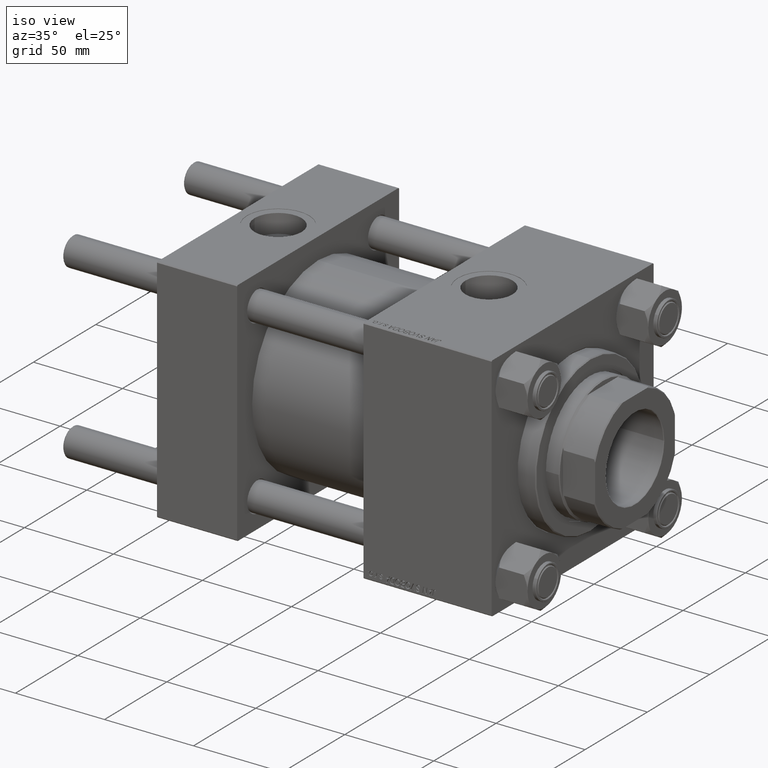
[diagram: clean part render]
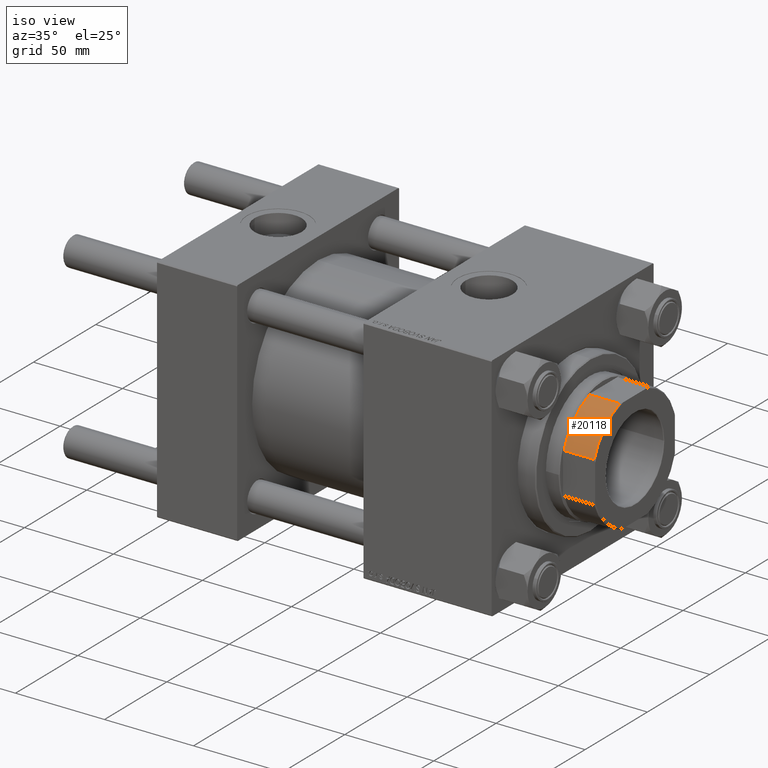
[diagram: same view with one face highlighted and labeled with its STEP entity id]
A machine part, iso view. The second image highlights one B-rep face of the part: STEP entity #20118.
In plain terms, the highlighted cylindrical surface (partial cylindrical patch) has radius 34 mm, axis along (1, 0, -0).
Its self-contained STEP definition (entity closure, byte-faithful):
#540 = LINE ( 'NONE', #8160, #28647 ) ;
#1418 = CIRCLE ( 'NONE', #29783, 34.00000000000000000 ) ;
#1670 = VERTEX_POINT ( 'NONE', #31015 ) ;
#1673 = EDGE_CURVE ( 'NONE', #1670, #6818, #24896, .T. ) ;
#5763 = EDGE_LOOP ( 'NONE', ( #25998, #30041, #19235, #17158 ) ) ;
#6818 = VERTEX_POINT ( 'NONE', #16638 ) ;
#8160 = CARTESIAN_POINT ( 'NONE',  ( 11.48912529307606256, -32.00000000000000000, -0.001000000000001000089 ) ) ;
#8642 = DIRECTION ( 'NONE',  ( 1.000000000000000000, 0.000000000000000000, 0.000000000000000000 ) ) ;
#9845 = DIRECTION ( 'NONE',  ( -0.000000000000000000, -0.000000000000000000, 1.000000000000000000 ) ) ;
#10234 = EDGE_CURVE ( 'NONE', #27169, #1670, #28155, .T. ) ;
#11464 = DIRECTION ( 'NONE',  ( -0.000000000000000000, -0.000000000000000000, 1.000000000000000000 ) ) ;
#15798 = DIRECTION ( 'NONE',  ( -0.000000000000000000, -0.000000000000000000, 1.000000000000000000 ) ) ;
#16638 = CARTESIAN_POINT ( 'NONE',  ( 11.48912529307606256, -32.00000000000000000, 177.5000000000000568 ) ) ;
#17158 = ORIENTED_EDGE ( 'NONE', *, *, #38600, .T. ) ;
#19235 = ORIENTED_EDGE ( 'NONE', *, *, #24412, .F. ) ;
#19579 = DIRECTION ( 'NONE',  ( -0.000000000000000000, -0.000000000000000000, -1.000000000000000000 ) ) ;
#20118 = ADVANCED_FACE ( 'NONE', ( #26322 ), #33474, .T. ) ;
#24412 = EDGE_CURVE ( 'NONE', #40772, #6818, #540, .T. ) ;
#24896 = CIRCLE ( 'NONE', #49282, 34.00000000000000000 ) ;
#25086 = CARTESIAN_POINT ( 'NONE',  ( 31.99999999999999289, -11.48912529307609098, -0.001000000000001000089 ) ) ;
#25998 = ORIENTED_EDGE ( 'NONE', *, *, #10234, .T. ) ;
#26322 = FACE_OUTER_BOUND ( 'NONE', #5763, .T. ) ;
#27169 = VERTEX_POINT ( 'NONE', #38394 ) ;
#27501 = CARTESIAN_POINT ( 'NONE',  ( 0.000000000000000000, 0.000000000000000000, 160.5000000000000000 ) ) ;
#28155 = LINE ( 'NONE', #25086, #42120 ) ;
#28542 = AXIS2_PLACEMENT_3D ( 'NONE', #41859, #40855, #37033 ) ;
#28647 = VECTOR ( 'NONE', #11464, 1000.000000000000000 ) ;
#29783 = AXIS2_PLACEMENT_3D ( 'NONE', #27501, #15798, #50161 ) ;
#30041 = ORIENTED_EDGE ( 'NONE', *, *, #1673, .T. ) ;
#31015 = CARTESIAN_POINT ( 'NONE',  ( 31.99999999999999289, -11.48912529307609098, 177.5000000000000568 ) ) ;
#32547 = CARTESIAN_POINT ( 'NONE',  ( 11.48912529307606256, -32.00000000000000000, 160.5000000000000000 ) ) ;
#33474 = CYLINDRICAL_SURFACE ( 'NONE', #28542, 34.00000000000000000 ) ;
#37033 = DIRECTION ( 'NONE',  ( 1.000000000000000000, 0.000000000000000000, 0.000000000000000000 ) ) ;
#38394 = CARTESIAN_POINT ( 'NONE',  ( 31.99999999999999289, -11.48912529307609098, 160.5000000000000000 ) ) ;
#38600 = EDGE_CURVE ( 'NONE', #40772, #27169, #1418, .T. ) ;
#40772 = VERTEX_POINT ( 'NONE', #32547 ) ;
#40855 = DIRECTION ( 'NONE',  ( -0.000000000000000000, -0.000000000000000000, 1.000000000000000000 ) ) ;
#41859 = CARTESIAN_POINT ( 'NONE',  ( 0.000000000000000000, 0.000000000000000000, -0.001000000000001000089 ) ) ;
#42120 = VECTOR ( 'NONE', #9845, 1000.000000000000000 ) ;
#42475 = CARTESIAN_POINT ( 'NONE',  ( 0.000000000000000000, 0.000000000000000000, 177.5000000000000568 ) ) ;
#49282 = AXIS2_PLACEMENT_3D ( 'NONE', #42475, #19579, #8642 ) ;
#50161 = DIRECTION ( 'NONE',  ( -1.000000000000000000, 0.000000000000000000, 0.000000000000000000 ) ) ;